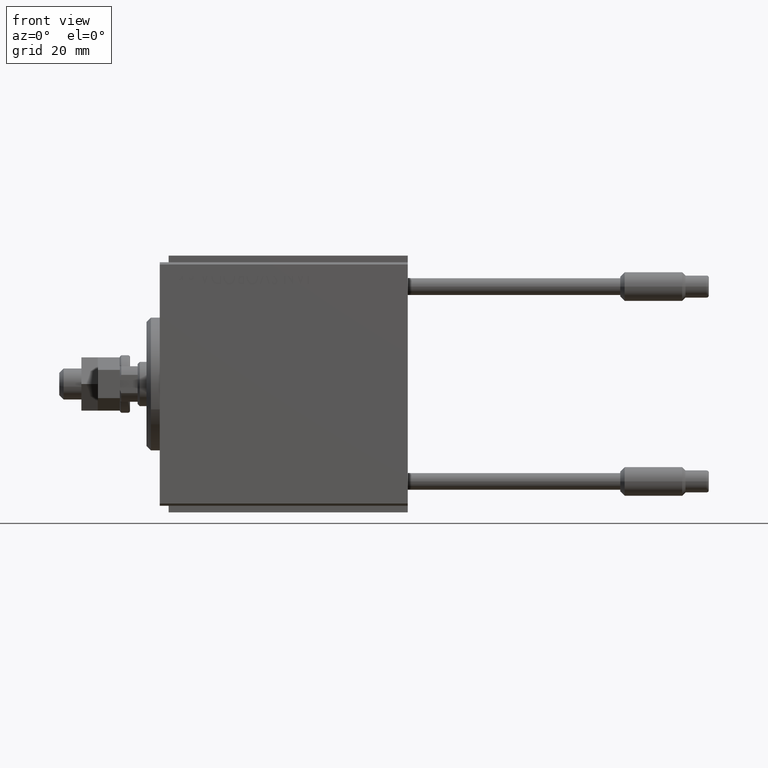
[diagram: clean part render]
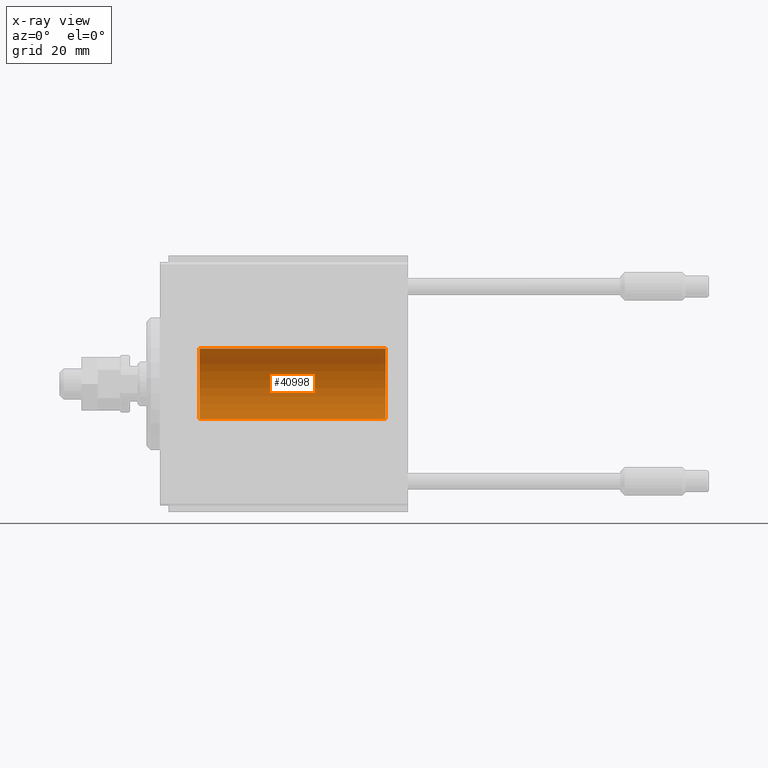
[diagram: x-ray — body ghosted, one internal face saturated and labeled with its STEP entity id]
A machine part, front view, then the same camera in x-ray: the body is ghosted and one INTERNAL B-rep face — a face not visible from any outside direction — is saturated and labeled: STEP entity #40998.
In plain terms, the highlighted cylindrical surface (edge-blend (fillet) strip) has radius 8 mm, axis along (-1, -0, -0).
Its self-contained STEP definition (entity closure, byte-faithful):
#2191 = CARTESIAN_POINT ( 'NONE',  ( 51.00000000000000000, 9.797174393178823685E-16, -7.999999999999998224 ) ) ;
#2554 = CARTESIAN_POINT ( 'NONE',  ( 51.00000000000000000, 9.797174393178823685E-16, -7.999999999999998224 ) ) ;
#3917 = CARTESIAN_POINT ( 'NONE',  ( 9.000000000000001776, 0.000000000000000000, 0.000000000000000000 ) ) ;
#4162 = DIRECTION ( 'NONE',  ( 0.000000000000000000, 0.000000000000000000, 1.000000000000000000 ) ) ;
#4484 = EDGE_CURVE ( 'NONE', #45128, #13375, #18304, .T. ) ;
#4881 = CARTESIAN_POINT ( 'NONE',  ( 9.000000000000001776, 0.000000000000000000, 7.999999999999998224 ) ) ;
#5656 = DIRECTION ( 'NONE',  ( -1.000000000000000000, -0.000000000000000000, -0.000000000000000000 ) ) ;
#6574 = DIRECTION ( 'NONE',  ( 0.000000000000000000, 0.000000000000000000, 1.000000000000000000 ) ) ;
#6930 = AXIS2_PLACEMENT_3D ( 'NONE', #3917, #19978, #4162 ) ;
#11850 = EDGE_CURVE ( 'NONE', #41695, #13375, #28980, .T. ) ;
#13296 = FACE_OUTER_BOUND ( 'NONE', #18967, .T. ) ;
#13375 = VERTEX_POINT ( 'NONE', #27682 ) ;
#16019 = ORIENTED_EDGE ( 'NONE', *, *, #11850, .F. ) ;
#16804 = VECTOR ( 'NONE', #44549, 1000.000000000000000 ) ;
#18304 = CIRCLE ( 'NONE', #6930, 7.999999999999998224 ) ;
#18967 = EDGE_LOOP ( 'NONE', ( #16019, #28552, #37129, #42736 ) ) ;
#19978 = DIRECTION ( 'NONE',  ( -1.000000000000000000, 0.000000000000000000, 0.000000000000000000 ) ) ;
#24841 = AXIS2_PLACEMENT_3D ( 'NONE', #29623, #5656, #49255 ) ;
#25104 = CARTESIAN_POINT ( 'NONE',  ( 51.00000000000000000, 0.000000000000000000, 7.999999999999998224 ) ) ;
#27395 = CARTESIAN_POINT ( 'NONE',  ( 51.00000000000000000, 0.000000000000000000, 7.999999999999998224 ) ) ;
#27682 = CARTESIAN_POINT ( 'NONE',  ( 9.000000000000001776, 9.797174393178823685E-16, -7.999999999999998224 ) ) ;
#28552 = ORIENTED_EDGE ( 'NONE', *, *, #31258, .F. ) ;
#28980 = LINE ( 'NONE', #2191, #16804 ) ;
#29623 = CARTESIAN_POINT ( 'NONE',  ( 51.00000000000000000, 0.000000000000000000, 0.000000000000000000 ) ) ;
#30328 = VECTOR ( 'NONE', #46272, 1000.000000000000000 ) ;
#31258 = EDGE_CURVE ( 'NONE', #39720, #41695, #44981, .T. ) ;
#33183 = CYLINDRICAL_SURFACE ( 'NONE', #24841, 7.999999999999998224 ) ;
#36007 = AXIS2_PLACEMENT_3D ( 'NONE', #48899, #41509, #6574 ) ;
#36601 = EDGE_CURVE ( 'NONE', #39720, #45128, #42202, .T. ) ;
#37129 = ORIENTED_EDGE ( 'NONE', *, *, #36601, .T. ) ;
#39720 = VERTEX_POINT ( 'NONE', #25104 ) ;
#40998 = ADVANCED_FACE ( 'NONE', ( #13296 ), #33183, .F. ) ;
#41509 = DIRECTION ( 'NONE',  ( -1.000000000000000000, 0.000000000000000000, 0.000000000000000000 ) ) ;
#41695 = VERTEX_POINT ( 'NONE', #2554 ) ;
#42202 = LINE ( 'NONE', #27395, #30328 ) ;
#42736 = ORIENTED_EDGE ( 'NONE', *, *, #4484, .T. ) ;
#44549 = DIRECTION ( 'NONE',  ( -1.000000000000000000, -0.000000000000000000, -0.000000000000000000 ) ) ;
#44981 = CIRCLE ( 'NONE', #36007, 7.999999999999998224 ) ;
#45128 = VERTEX_POINT ( 'NONE', #4881 ) ;
#46272 = DIRECTION ( 'NONE',  ( -1.000000000000000000, -0.000000000000000000, -0.000000000000000000 ) ) ;
#48899 = CARTESIAN_POINT ( 'NONE',  ( 51.00000000000000000, 0.000000000000000000, 0.000000000000000000 ) ) ;
#49255 = DIRECTION ( 'NONE',  ( 0.000000000000000000, 0.000000000000000000, 1.000000000000000000 ) ) ;